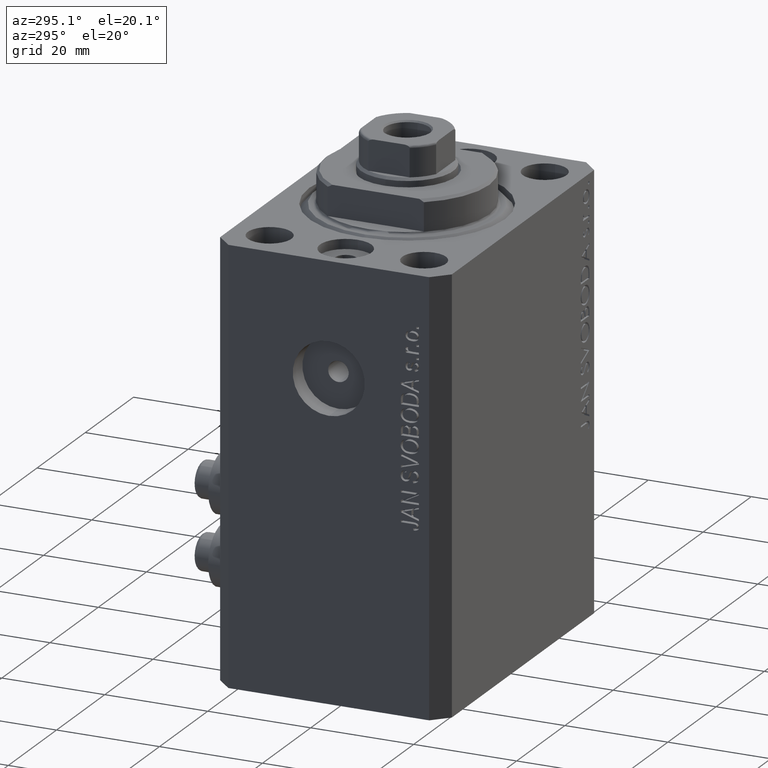
[diagram: clean part render]
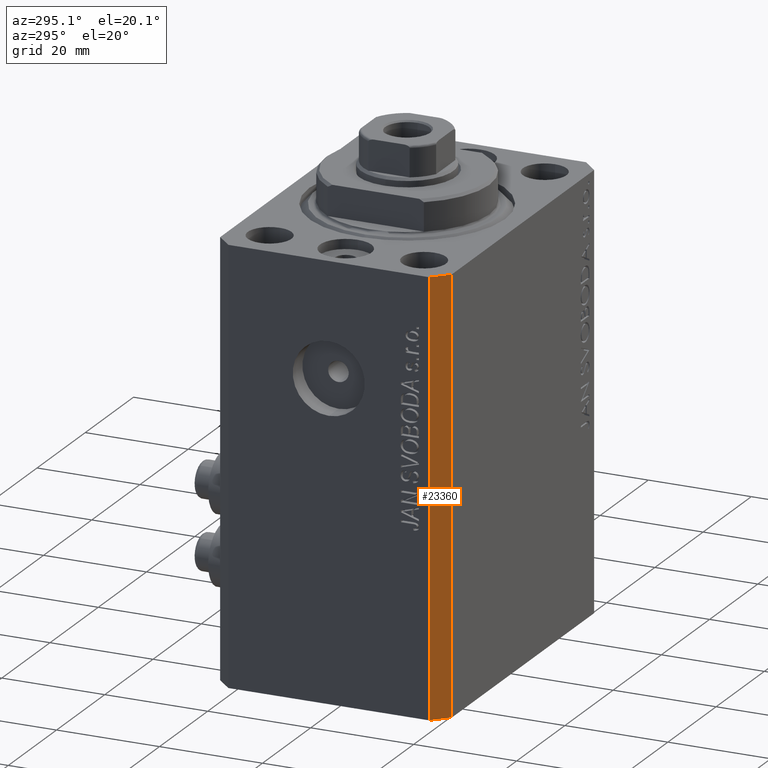
[diagram: same view with one face highlighted and labeled with its STEP entity id]
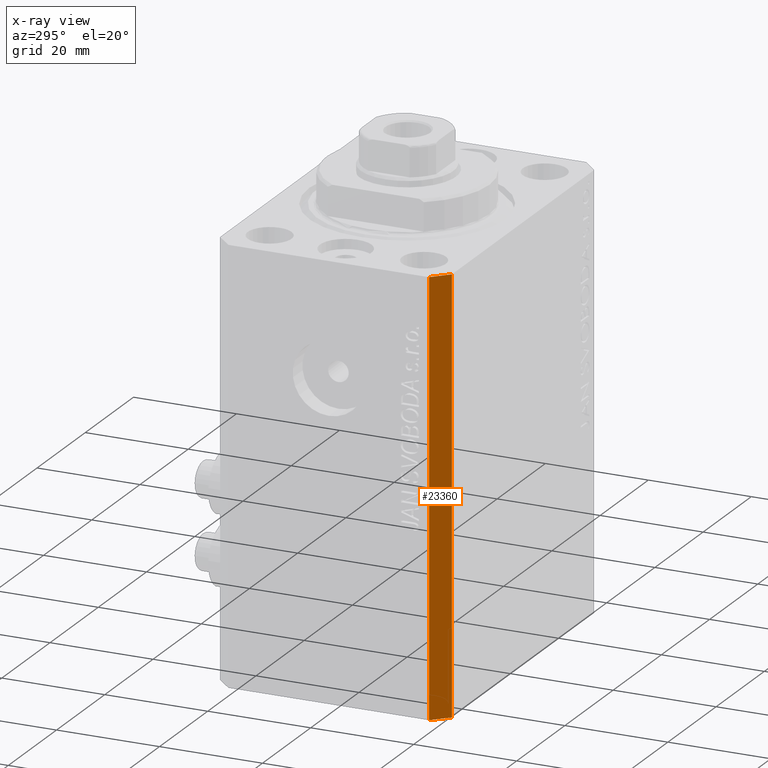
[diagram: x-ray of the same camera — body ghosted, the highlighted face saturated]
A machine part, auxiliary view. The second image highlights one B-rep face of the part: STEP entity #23360.
The next image is the same camera in x-ray: the body ghosted, the highlighted face saturated — about 0% of this face is hidden behind the body in this view.
In plain terms, the highlighted planar face has unit normal (-0.7071, -0.7071, 0).
Its self-contained STEP definition (entity closure, byte-faithful):
#741 = ORIENTED_EDGE ( 'NONE', *, *, #17206, .T. ) ;
#1146 = VERTEX_POINT ( 'NONE', #17554 ) ;
#1156 = ORIENTED_EDGE ( 'NONE', *, *, #35598, .T. ) ;
#2139 = FACE_OUTER_BOUND ( 'NONE', #21517, .T. ) ;
#5163 = DIRECTION ( 'NONE',  ( 0.000000000000000000, 0.000000000000000000, 1.000000000000000000 ) ) ;
#5956 = VECTOR ( 'NONE', #5163, 1000.000000000000000 ) ;
#6420 = DIRECTION ( 'NONE',  ( 0.7071067811865474617, -0.7071067811865474617, 0.000000000000000000 ) ) ;
#6660 = DIRECTION ( 'NONE',  ( 0.000000000000000000, 0.000000000000000000, 1.000000000000000000 ) ) ;
#6765 = VERTEX_POINT ( 'NONE', #45470 ) ;
#6802 = DIRECTION ( 'NONE',  ( 0.7071067811865474617, -0.7071067811865474617, 0.000000000000000000 ) ) ;
#10701 = LINE ( 'NONE', #32186, #17781 ) ;
#12038 = VECTOR ( 'NONE', #6802, 1000.000000000000114 ) ;
#13342 = CARTESIAN_POINT ( 'NONE',  ( -32.49999999999650413, -19.49999999999949907, -83.00000000000000000 ) ) ;
#14878 = CARTESIAN_POINT ( 'NONE',  ( -32.49999999999650413, -19.49999999999949907, -83.00000000000000000 ) ) ;
#15676 = EDGE_CURVE ( 'NONE', #21472, #6765, #10701, .T. ) ;
#16001 = ORIENTED_EDGE ( 'NONE', *, *, #34714, .F. ) ;
#17206 = EDGE_CURVE ( 'NONE', #21472, #1146, #18924, .T. ) ;
#17554 = CARTESIAN_POINT ( 'NONE',  ( -29.49999999999650413, -22.49999999999949907, -83.00000000000000000 ) ) ;
#17781 = VECTOR ( 'NONE', #6660, 1000.000000000000000 ) ;
#18776 = CARTESIAN_POINT ( 'NONE',  ( -29.49999999999650413, -22.49999999999949907, -83.00000000000000000 ) ) ;
#18924 = LINE ( 'NONE', #14878, #46896 ) ;
#19008 = LINE ( 'NONE', #18776, #5956 ) ;
#20499 = PLANE ( 'NONE',  #27807 ) ;
#21472 = VERTEX_POINT ( 'NONE', #25660 ) ;
#21517 = EDGE_LOOP ( 'NONE', ( #16001, #34118, #741, #1156 ) ) ;
#22287 = CARTESIAN_POINT ( 'NONE',  ( -29.49999999999650413, -22.49999999999949907, 0.000000000000000000 ) ) ;
#23360 = ADVANCED_FACE ( 'NONE', ( #2139 ), #20499, .T. ) ;
#24926 = LINE ( 'NONE', #28753, #12038 ) ;
#25660 = CARTESIAN_POINT ( 'NONE',  ( -32.49999999999650413, -19.49999999999949907, -83.00000000000000000 ) ) ;
#27807 = AXIS2_PLACEMENT_3D ( 'NONE', #13342, #31243, #6420 ) ;
#28753 = CARTESIAN_POINT ( 'NONE',  ( -32.49999999999650413, -19.49999999999949907, 0.000000000000000000 ) ) ;
#31243 = DIRECTION ( 'NONE',  ( -0.7071067811865475727, -0.7071067811865475727, 0.000000000000000000 ) ) ;
#32186 = CARTESIAN_POINT ( 'NONE',  ( -32.49999999999650413, -19.49999999999949907, -83.00000000000000000 ) ) ;
#33945 = DIRECTION ( 'NONE',  ( 0.7071067811865474617, -0.7071067811865474617, 0.000000000000000000 ) ) ;
#34118 = ORIENTED_EDGE ( 'NONE', *, *, #15676, .F. ) ;
#34714 = EDGE_CURVE ( 'NONE', #6765, #47110, #24926, .T. ) ;
#35598 = EDGE_CURVE ( 'NONE', #1146, #47110, #19008, .T. ) ;
#45470 = CARTESIAN_POINT ( 'NONE',  ( -32.49999999999650413, -19.49999999999949907, 0.000000000000000000 ) ) ;
#46896 = VECTOR ( 'NONE', #33945, 1000.000000000000114 ) ;
#47110 = VERTEX_POINT ( 'NONE', #22287 ) ;